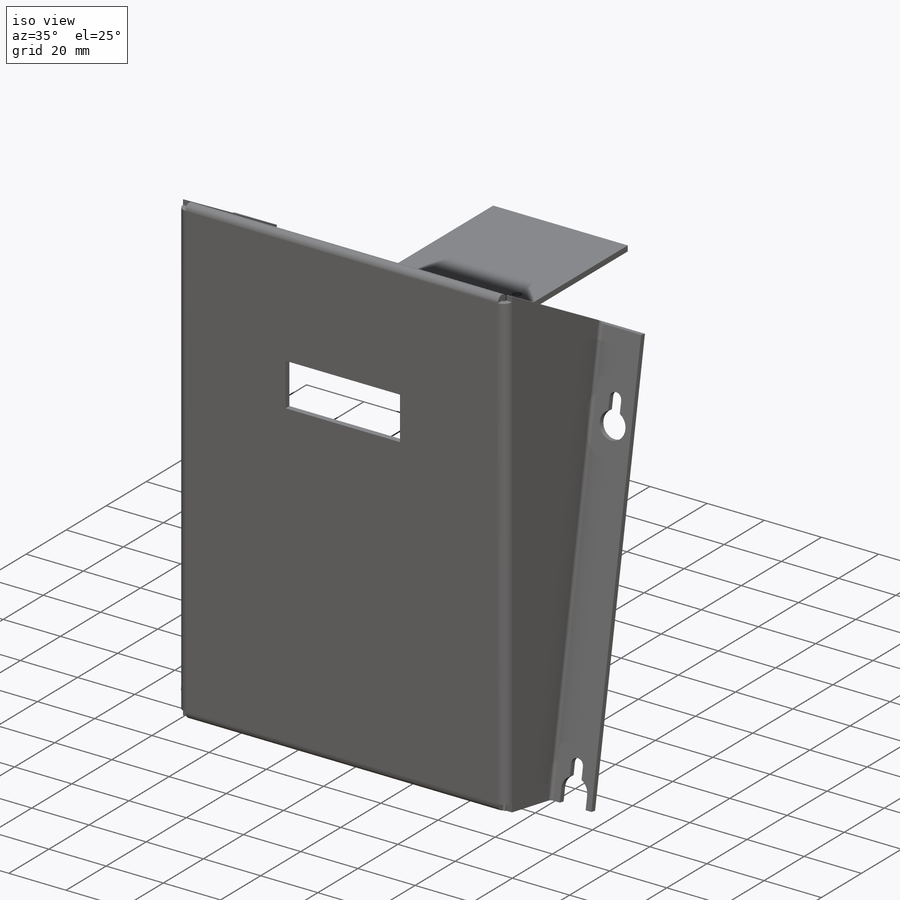
[diagram: iso view]
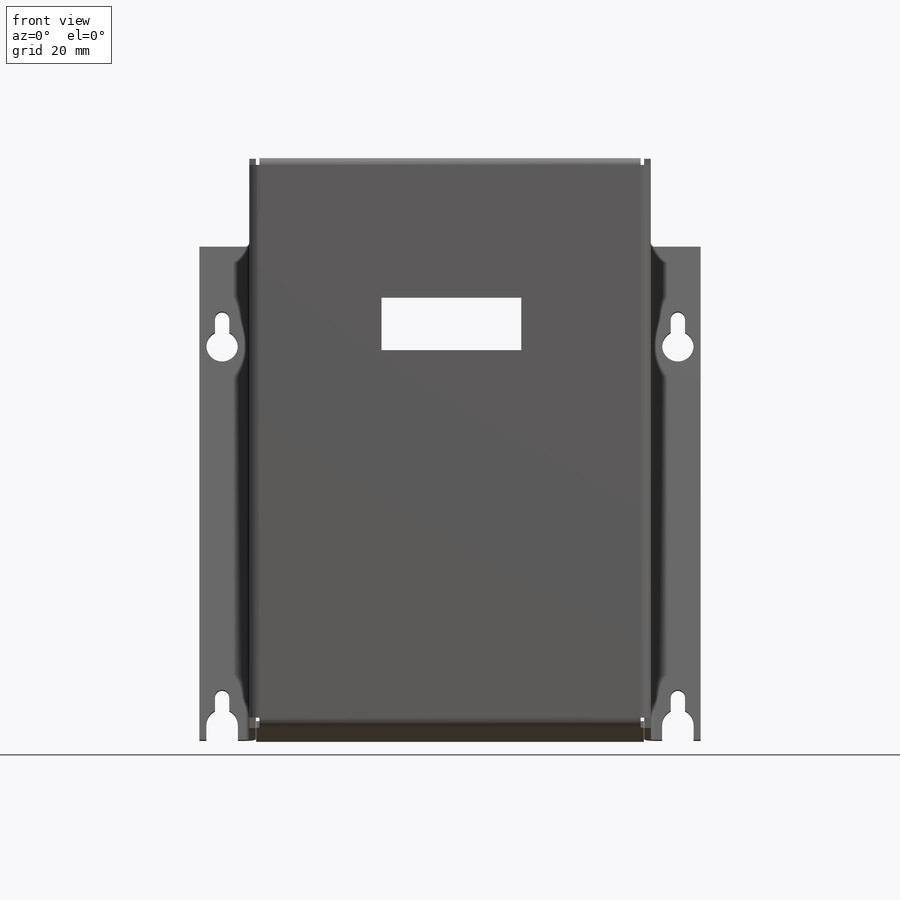
[diagram: front view]
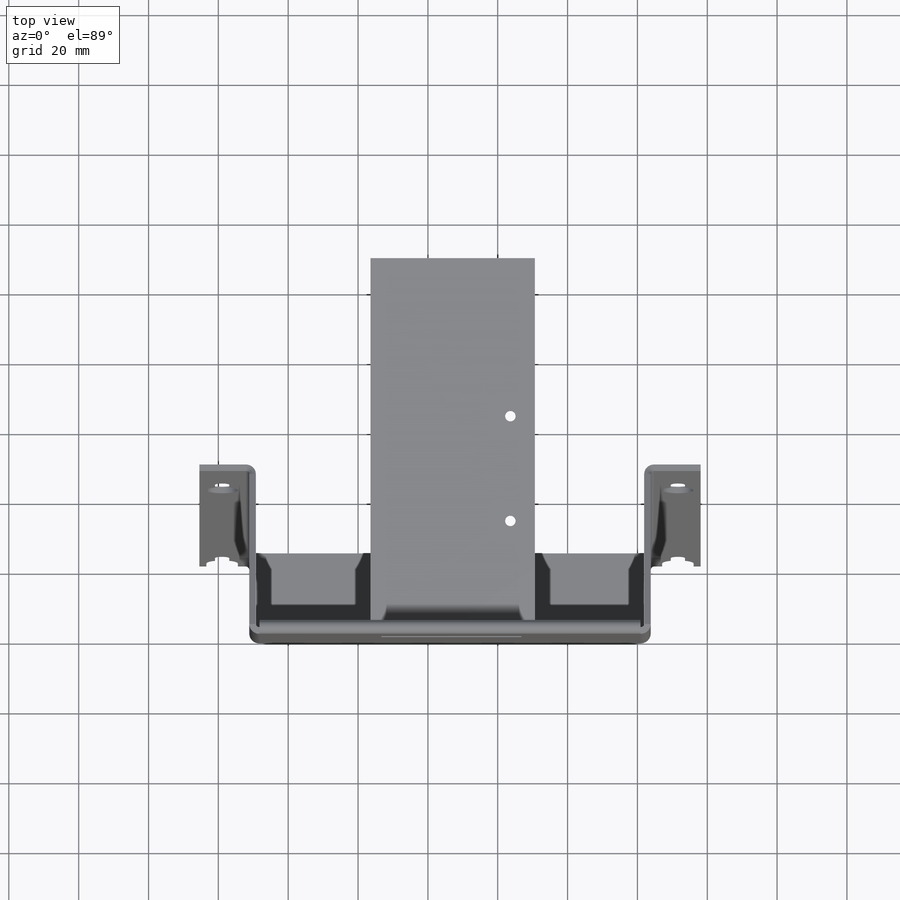
[diagram: top view]
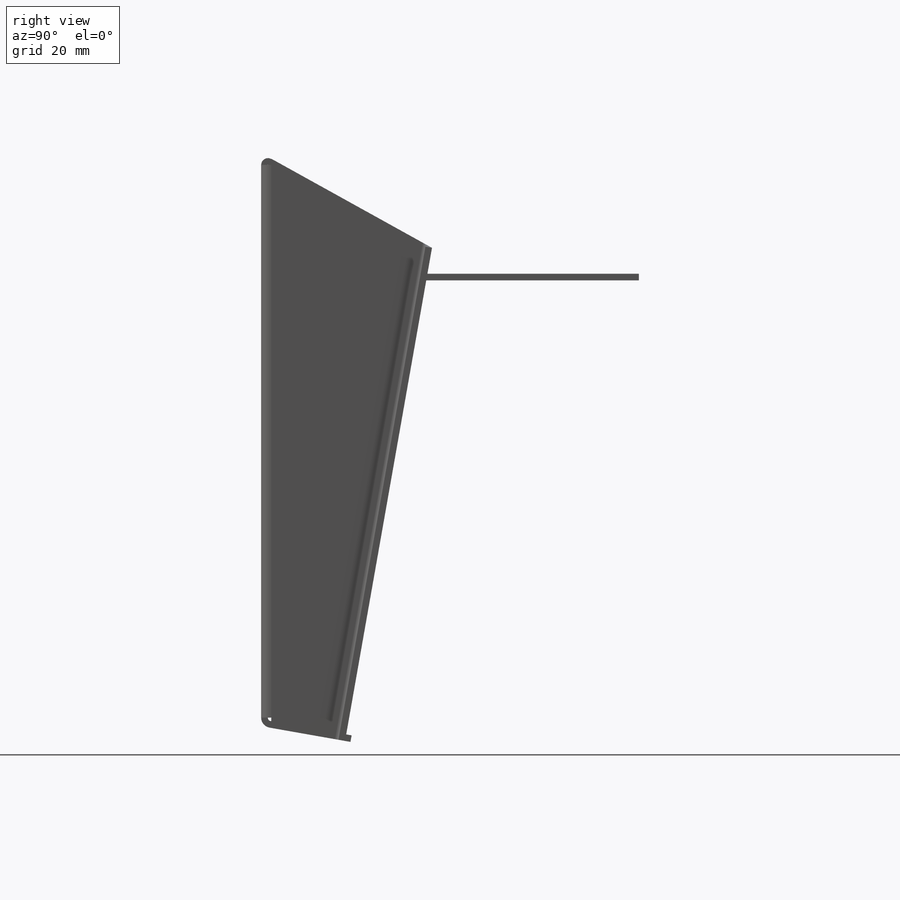
[diagram: right view]
SOLIDWORKS PART (.sldprt)
format: sldprt  version: not decoded by parser v0  size: 821,248 bytes
history: native  units: mm
features: sketch x36, sheet_metal_op x14, cut_extrude x6, material x1 + 10 further entries (+13 scaffold rows collapsed; 10 parser-record rows omitted)
feature tree (90):
  scaffold x13  (default folders/planes/origin — collapsed)
  material  "Material <not specified>"
  sketch  "Sketch1"  dims[c1.D1=115.0mm c1.D2=163.0mm c2.D1=1.27mm c2.D2=0.5 c2.D3=0.0mm c2.D6=500.0mm]
  sheet_metal_op  "Base-Flange1"
  sketch  "Sketch10"  dims[c1.D1=51.26mm c2.D1=10.0deg c3.D1=~58.450603mm c4.D1=90.0deg c5.D1=~58.450603mm c6.D1=80.0deg c6.D2=~146.373584mm c7.D2=90.0deg c7.D3=134.0mm c8.D3=100.0deg c8.D4=~82.980113mm c9.D4=90.0deg c9.D5=134.0mm c10.D5=10.0deg c11.D5=50.0mm]
  sketch  "Sketch11"  dims[c1.D1=50.0mm c1.D2=50.0mm c2.D2=90.0deg c3.D2=50.0mm c4.D2=80.0deg c4.D3=~125.317591mm c5.D3=90.0deg c5.D4=134.0mm c6.D4=100.0deg c6.D1=50.0mm c7.D1=1.0mm c7.D4=90.0deg c7.D5=1.0 c7.D8=0.37mm c7.D9=0.37mm c8.D1=1.0mm c8.D4=90.0deg c8.D5=2.0 c8.D8=0.37mm c8.D9=0.37mm c9.D1=1.27mm c9.D2=500.0mm c9.D3=0.0mm c9.D6=10.0mm c9.D7=52.0mm c9.D8=1.0mm]
  sheet_metal_op  "Edge-Flange2"
  sketch  "Sketch16"
  sketch  "Sketch17"  dims[c1.D1=1.0mm c1.D4=90.0deg c1.D5=3.0 c1.D8=0.37mm c1.D9=0.37mm c2.D1=1.0mm c2.D4=90.0deg c2.D5=4.0 c2.D8=0.37mm c2.D9=0.37mm c3.D1=1.27mm c3.D2=500.0mm c3.D3=0.0mm c3.D6=10.0mm c3.D7=15.0mm c3.D8=1.0mm]
  sketch  "Sketch18"  dims[c1.D10=4.0mm c1.D11=4.0mm c1.D17=3.0mm c1.D1=15.0mm c1.D2=45.0mm c1.D3=30.0mm c2.D1=40.0mm c2.D2=15.0mm c2.D3=35.0mm c2.D4=34.2mm c2.D5=40.0mm c2.D6=92.0mm c2.D7=16.0mm c2.D8=9.0mm c2.D9=8.2mm c2.D12=80.0mm c2.D13=9.0mm c2.D14=15.0mm c2.D15=5.0mm c2.D16=40.0mm c2.D17=80.0mm c3.D5=40.0mm c3.D16=42.0mm]
  cut_extrude  "Cut-Extrude1"  Depth=10mm
  sheet_metal_op  "Edge-Flange3"
  sketch  "Sketch21"  dims[c1.D1=1.0mm c1.D4=80.0deg c1.D5=5.0 c1.D8=0.37mm c1.D9=0.37mm c2.D1=1.0mm c2.D2=500.0mm c2.D3=0.0mm c2.D6=10.0mm c2.D7=~25.973356mm]
  sketch  "Sketch23"  dims[c1.D1=0.05mm c1.D4=180.0deg c1.D5=6.0 c1.D8=0.95mm c1.D9=0.95mm c2.D1=0.05mm c2.D2=500.0mm c2.D3=0.0mm c2.D7=35.0mm c2.D8=0.1mm c2.D9=1.0mm]
  sheet_metal_op  "Edge-Flange4"
  sketch  "Sketch26"  dims[c1.D1=1.0mm c1.D4=90.0deg c1.D5=7.0 c1.D8=0.37mm c1.D9=0.37mm c2.D1=1.0mm c2.D2=500.0mm c2.D3=0.0mm c2.D6=10.0mm c2.D7=106.16mm]
  sketch  "Sketch27"  dims[c1.D1=4.08mm c1.D2=4.08mm c1.D3=4.08mm c1.D4=4.08mm c1.D5=4.08mm c1.D6=4.08mm c1.D7=4.08mm c1.D8=4.08mm c1.D9=4.08mm c2.D5=12.5mm c2.D6=6.5mm c2.D7=6.5mm c2.D8=110.0mm c2.D9=~130.413921mm]
  cut_extrude  "Cut-Extrude2"  Depth=10mm
  sketch  "Sketch28"  dims[D1=3.0mm D2=3.0mm D3=28.0mm D4=30.0mm D5=7.0mm D6=7.0mm]
  cut_extrude  "Cut-Extrude3"  Depth=10mm
  sketch  "Sketch29"  dims[D1=2.0mm D2=30.0mm]
  sketch  "Sketch30"  dims[c1.D1=~26.670054mm c2.D1=119.0deg]
  cut_extrude  "Cut-Extrude5"  Depth=10mm
  cut_extrude  "Closed Corner3"  Depth=2000mm
  sketch  "Sketch31"  dims[D1=9.0mm D3=9.0mm D2=8.0mm D4=8.0mm]
  cut_extrude  "Cut-Extrude6"  Depth=10mm
  sketch  "Bend-Lines1"
  sketch  "Bounding-Box1"
  sheet_metal_op  "Sheet-Metal1"
  "Flat-Pattern1"
  sketch  "Bend-Lines2"
  sketch  "Bounding-Box2"
  parser-record x10  (decoder bookkeeping rows leaked as tree rows — omitted from the tree; the rows remain in map.json)
  sheet_metal_op  "Sheet-Metal2"
  "Flat-Pattern1"
  sketch  "Bend-Lines2"
  sketch  "Bounding-Box2"
  sheet_metal_op  "Sheet-Metal3"
  "Flat-Pattern1"
  sketch  "Bend-Lines2"
  sketch  "Bounding-Box2"
  sheet_metal_op  "Sheet-Metal4"
  "Flat-Pattern1"
  sketch  "Bend-Lines2"
  sketch  "Bounding-Box2"
  sheet_metal_op  "Sheet-Metal5"
  "Flat-Pattern1"
  sketch  "Bend-Lines2"
  sketch  "Bounding-Box2"
  sheet_metal_op  "Sheet-Metal6"
  "Flat-Pattern1"
  sketch  "Bend-Lines2"
  sketch  "Bounding-Box2"
  sheet_metal_op  "Sheet-Metal7"
  "Flat-Pattern1"
  sketch  "Bend-Lines2"
  sketch  "Bounding-Box2"
  sheet_metal_op  "Sheet-Metal8"
  "Flat-Pattern1"
  sketch  "Bend-Lines2"
  sketch  "Bounding-Box2"
  sheet_metal_op  "Sheet-Metal10"
  "Flat-Pattern1"
  sketch  "Bend-Lines2"
  sketch  "Bounding-Box2"
  sheet_metal_op  "Sheet-Metal11"
  "Flat-Pattern1"
  sketch  "Bend-Lines2"
  sketch  "Bounding-Box2"
decode coverage: 19 of 56 modeling features carry decoded parameters; 10 rows unclassified (native names shown)
note: ~ marks probable driven/reference dimensions
note: suppression state not decoded; provenance and decode notes live in map.json
